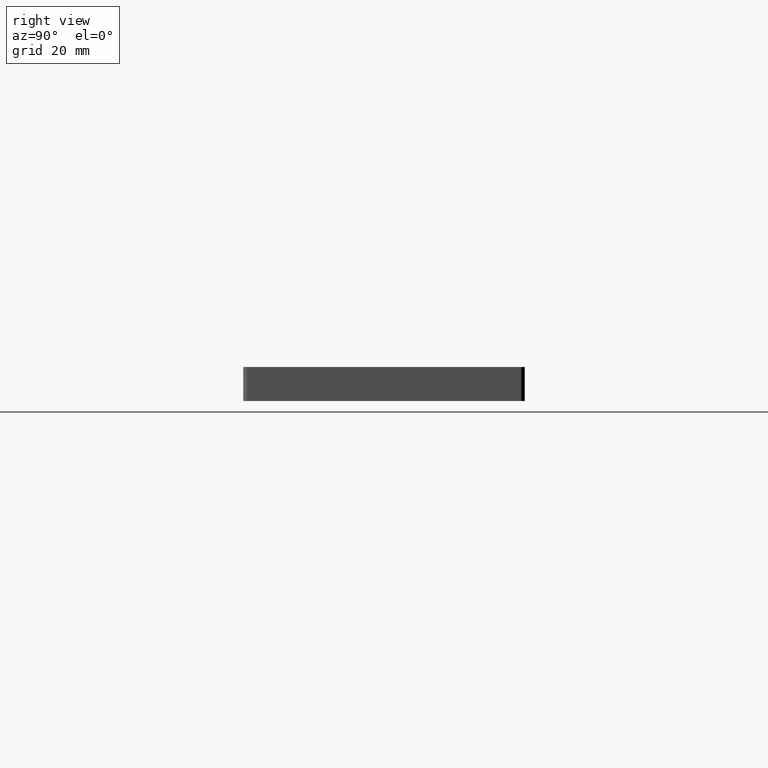
[diagram: clean part render]
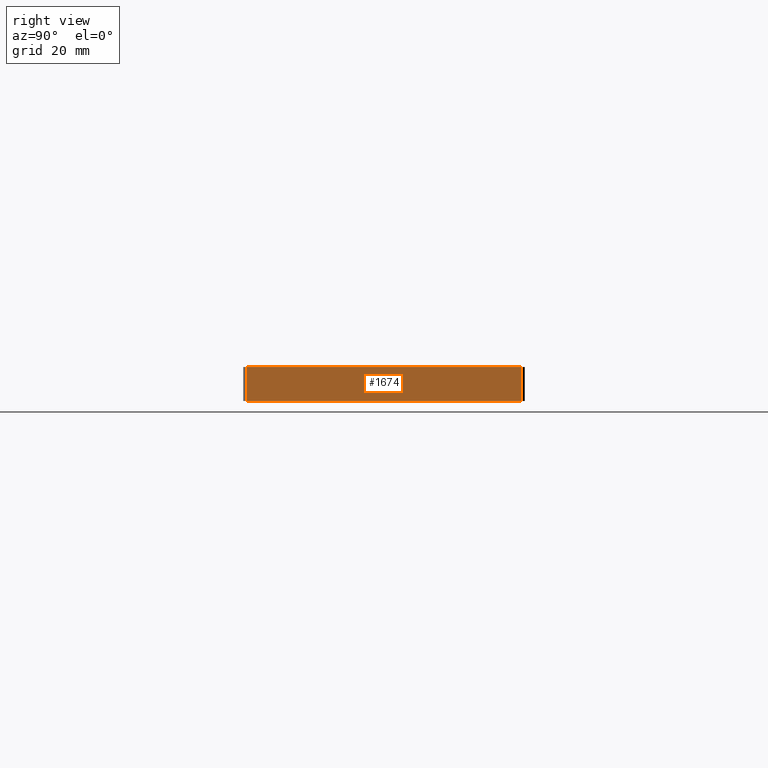
[diagram: same view with one face highlighted and labeled with its STEP entity id]
A machine part, right view. The second image highlights one B-rep face of the part: STEP entity #1674.
In plain terms, the highlighted planar face has unit normal (1, 0, 0).
Its self-contained STEP definition (entity closure, byte-faithful):
#287 = CARTESIAN_POINT ( 'NONE',  ( 5.904993993654027700, 0.03000000000000049800, 0.2970000000000000400 ) ) ;
#567 = DIRECTION ( 'NONE',  ( 0.0000000000000000000, -1.000000000000000000, -0.0000000000000000000 ) ) ;
#858 = PLANE ( 'NONE',  #1320 ) ;
#1049 = EDGE_CURVE ( 'NONE', #2238, #6574, #5441, .T. ) ;
#1074 = CARTESIAN_POINT ( 'NONE',  ( 5.904993993654027700, 2.464999999999999900, 0.0000000000000000000 ) ) ;
#1189 = CARTESIAN_POINT ( 'NONE',  ( 5.904993993654028600, 0.03000000000000364200, 0.0000000000000000000 ) ) ;
#1320 = AXIS2_PLACEMENT_3D ( 'NONE', #5540, #6116, #2604 ) ;
#1674 = ADVANCED_FACE ( 'NONE', ( #4233 ), #858, .T. ) ;
#1762 = VERTEX_POINT ( 'NONE', #6225 ) ;
#2045 = DIRECTION ( 'NONE',  ( 0.0000000000000000000, 0.0000000000000000000, -1.000000000000000000 ) ) ;
#2238 = VERTEX_POINT ( 'NONE', #7371 ) ;
#2353 = LINE ( 'NONE', #4023, #6832 ) ;
#2604 = DIRECTION ( 'NONE',  ( 0.0000000000000000000, 0.0000000000000000000, -1.000000000000000000 ) ) ;
#3031 = VECTOR ( 'NONE', #5738, 39.37007874015748100 ) ;
#3182 = LINE ( 'NONE', #6931, #3394 ) ;
#3394 = VECTOR ( 'NONE', #3417, 39.37007874015748100 ) ;
#3417 = DIRECTION ( 'NONE',  ( 0.0000000000000000000, -0.0000000000000000000, 1.000000000000000000 ) ) ;
#4023 = CARTESIAN_POINT ( 'NONE',  ( 5.904993993654027700, 2.464999999999999900, 0.2970000000000000400 ) ) ;
#4233 = FACE_OUTER_BOUND ( 'NONE', #5612, .T. ) ;
#4397 = EDGE_CURVE ( 'NONE', #7471, #6574, #4625, .T. ) ;
#4625 = LINE ( 'NONE', #1074, #3031 ) ;
#5014 = ORIENTED_EDGE ( 'NONE', *, *, #1049, .T. ) ;
#5316 = EDGE_CURVE ( 'NONE', #7471, #1762, #3182, .T. ) ;
#5441 = LINE ( 'NONE', #287, #6800 ) ;
#5540 = CARTESIAN_POINT ( 'NONE',  ( 5.904993993654027700, 2.464999999999999900, 0.2970000000000000400 ) ) ;
#5612 = EDGE_LOOP ( 'NONE', ( #5971, #5014, #7184, #7196 ) ) ;
#5738 = DIRECTION ( 'NONE',  ( 0.0000000000000000000, -1.000000000000000000, -0.0000000000000000000 ) ) ;
#5971 = ORIENTED_EDGE ( 'NONE', *, *, #6034, .T. ) ;
#6034 = EDGE_CURVE ( 'NONE', #1762, #2238, #2353, .T. ) ;
#6116 = DIRECTION ( 'NONE',  ( 1.000000000000000000, 0.0000000000000000000, 0.0000000000000000000 ) ) ;
#6225 = CARTESIAN_POINT ( 'NONE',  ( 5.904993993654027700, 2.434999999999999600, 0.2970000000000000400 ) ) ;
#6574 = VERTEX_POINT ( 'NONE', #1189 ) ;
#6800 = VECTOR ( 'NONE', #2045, 39.37007874015748100 ) ;
#6832 = VECTOR ( 'NONE', #567, 39.37007874015748100 ) ;
#6931 = CARTESIAN_POINT ( 'NONE',  ( 5.904993993654027700, 2.434999999999999600, 0.2970000000000000400 ) ) ;
#7184 = ORIENTED_EDGE ( 'NONE', *, *, #4397, .F. ) ;
#7196 = ORIENTED_EDGE ( 'NONE', *, *, #5316, .T. ) ;
#7371 = CARTESIAN_POINT ( 'NONE',  ( 5.904993993654027700, 0.03000000000000090800, 0.2970000000000000400 ) ) ;
#7391 = CARTESIAN_POINT ( 'NONE',  ( 5.904993993654027700, 2.434999999999999600, 0.0000000000000000000 ) ) ;
#7471 = VERTEX_POINT ( 'NONE', #7391 ) ;